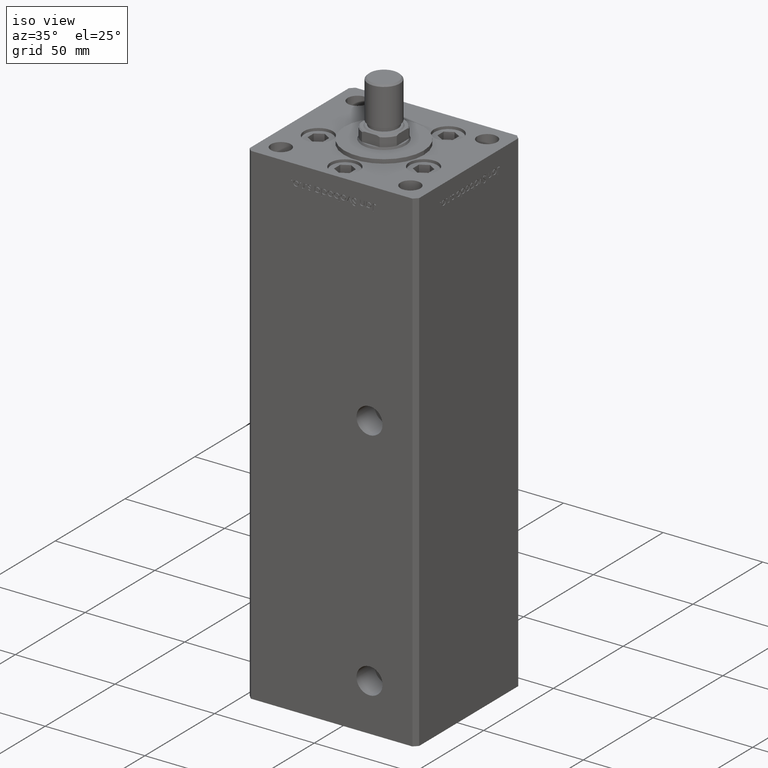
[diagram: clean part render]
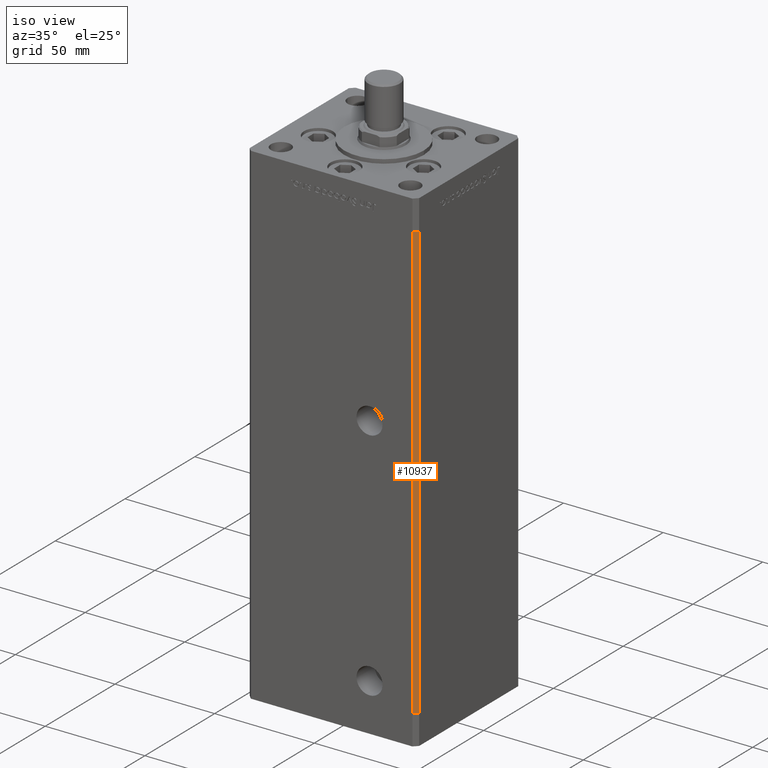
[diagram: same view with one face highlighted and labeled with its STEP entity id]
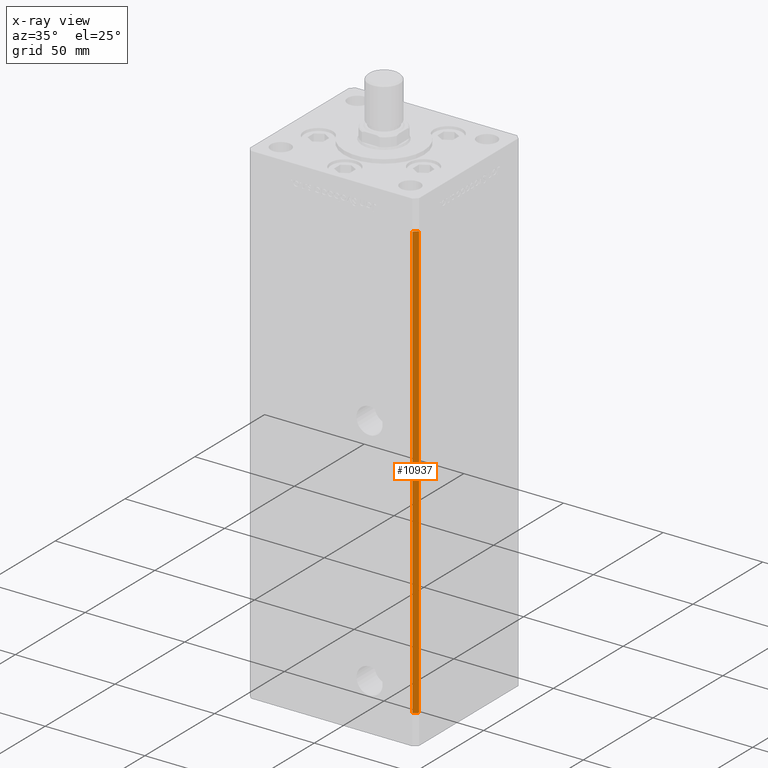
[diagram: x-ray of the same camera — body ghosted, the highlighted face saturated]
A machine part, iso view. The second image highlights one B-rep face of the part: STEP entity #10937.
The next image is the same camera in x-ray: the body ghosted, the highlighted face saturated — about 0% of this face is hidden behind the body in this view.
In plain terms, the highlighted planar face has unit normal (0.7071, -0.7071, 0).
Its self-contained STEP definition (entity closure, byte-faithful):
#3322 = CARTESIAN_POINT ( 'NONE',  ( 42.49999999999998579, -35.50000000000000711, 218.5000000000000000 ) ) ;
#3529 = FACE_OUTER_BOUND ( 'NONE', #19787, .T. ) ;
#4477 = LINE ( 'NONE', #32298, #34179 ) ;
#5457 = DIRECTION ( 'NONE',  ( -0.000000000000000000, -0.000000000000000000, -1.000000000000000000 ) ) ;
#9428 = CARTESIAN_POINT ( 'NONE',  ( 42.49999999999998579, -35.50000000000000711, 218.5000000000000000 ) ) ;
#10124 = VECTOR ( 'NONE', #21014, 1000.000000000000114 ) ;
#10937 = ADVANCED_FACE ( 'NONE', ( #3529 ), #11484, .T. ) ;
#11226 = DIRECTION ( 'NONE',  ( 0.7071067811865475727, -0.7071067811865475727, 0.000000000000000000 ) ) ;
#11484 = PLANE ( 'NONE',  #44584 ) ;
#15654 = ORIENTED_EDGE ( 'NONE', *, *, #26190, .F. ) ;
#18908 = DIRECTION ( 'NONE',  ( 0.7071067811865474617, 0.7071067811865474617, 0.000000000000000000 ) ) ;
#19787 = EDGE_LOOP ( 'NONE', ( #38900, #15654, #44521, #46996 ) ) ;
#21014 = DIRECTION ( 'NONE',  ( -0.7071067811865474617, -0.7071067811865474617, 0.000000000000000000 ) ) ;
#21448 = CARTESIAN_POINT ( 'NONE',  ( 42.49999999999998579, -35.50000000000000711, 218.5000000000000000 ) ) ;
#22080 = CARTESIAN_POINT ( 'NONE',  ( 40.49999999999998579, -37.50000000000000711, 0.000000000000000000 ) ) ;
#24107 = DIRECTION ( 'NONE',  ( -0.000000000000000000, -0.000000000000000000, -1.000000000000000000 ) ) ;
#24738 = CARTESIAN_POINT ( 'NONE',  ( 42.49999999999998579, -35.50000000000000711, 0.000000000000000000 ) ) ;
#25682 = VERTEX_POINT ( 'NONE', #41283 ) ;
#25870 = LINE ( 'NONE', #9428, #36415 ) ;
#26190 = EDGE_CURVE ( 'NONE', #42257, #25682, #25870, .T. ) ;
#32298 = CARTESIAN_POINT ( 'NONE',  ( 40.49999999999998579, -37.50000000000000711, 218.5000000000000000 ) ) ;
#32583 = VERTEX_POINT ( 'NONE', #49519 ) ;
#33879 = DIRECTION ( 'NONE',  ( -0.7071067811865474617, -0.7071067811865474617, 0.000000000000000000 ) ) ;
#34179 = VECTOR ( 'NONE', #24107, 1000.000000000000000 ) ;
#36415 = VECTOR ( 'NONE', #5457, 1000.000000000000000 ) ;
#36711 = VECTOR ( 'NONE', #33879, 1000.000000000000114 ) ;
#38900 = ORIENTED_EDGE ( 'NONE', *, *, #43921, .F. ) ;
#40872 = EDGE_CURVE ( 'NONE', #32583, #49927, #4477, .T. ) ;
#40887 = LINE ( 'NONE', #24738, #10124 ) ;
#41283 = CARTESIAN_POINT ( 'NONE',  ( 42.49999999999998579, -35.50000000000000711, 0.000000000000000000 ) ) ;
#41749 = EDGE_CURVE ( 'NONE', #42257, #32583, #42337, .T. ) ;
#42257 = VERTEX_POINT ( 'NONE', #3322 ) ;
#42337 = LINE ( 'NONE', #21448, #36711 ) ;
#43921 = EDGE_CURVE ( 'NONE', #25682, #49927, #40887, .T. ) ;
#44521 = ORIENTED_EDGE ( 'NONE', *, *, #41749, .T. ) ;
#44584 = AXIS2_PLACEMENT_3D ( 'NONE', #47526, #11226, #18908 ) ;
#46996 = ORIENTED_EDGE ( 'NONE', *, *, #40872, .T. ) ;
#47526 = CARTESIAN_POINT ( 'NONE',  ( 42.49999999999998579, -35.50000000000000711, 218.5000000000000000 ) ) ;
#49519 = CARTESIAN_POINT ( 'NONE',  ( 40.49999999999998579, -37.50000000000000711, 218.5000000000000000 ) ) ;
#49927 = VERTEX_POINT ( 'NONE', #22080 ) ;